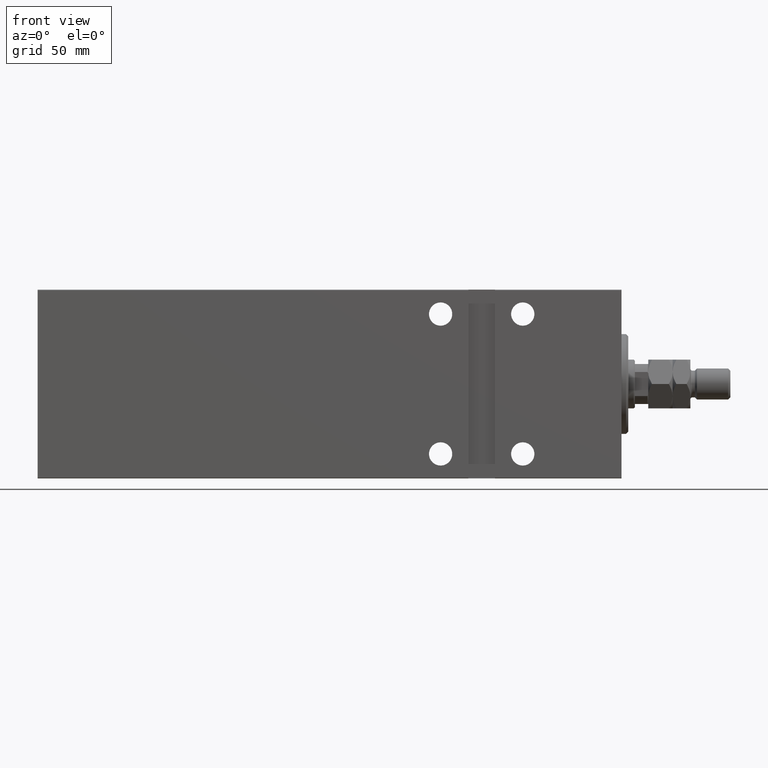
[diagram: clean part render]
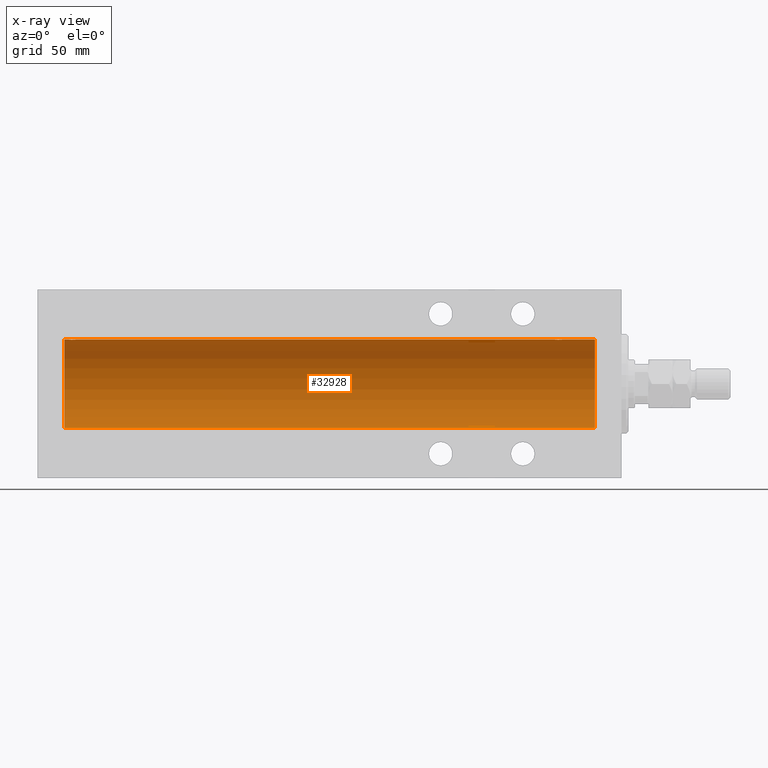
[diagram: x-ray — body ghosted, one internal face saturated and labeled with its STEP entity id]
A machine part, front view, then the same camera in x-ray: the body is ghosted and one INTERNAL B-rep face — a face not visible from any outside direction — is saturated and labeled: STEP entity #32928.
In plain terms, the highlighted cylindrical surface (partial cylindrical patch) has radius 20 mm, axis along (1, 0, -0).
Its self-contained STEP definition (entity closure, byte-faithful):
#510 = CARTESIAN_POINT ( 'NONE',  ( 28.63058871710835618, -2.000100592782549924, 19.89973863218036598 ) ) ;
#591 = CARTESIAN_POINT ( 'NONE',  ( 249.0977469155473045, -1.230936344679274264, 19.96293863536309132 ) ) ;
#1184 = DIRECTION ( 'NONE',  ( -1.000000000000000000, -0.000000000000000000, -0.000000000000000000 ) ) ;
#1197 = CARTESIAN_POINT ( 'NONE',  ( 29.14348528733042798, -1.898187925611333648, 19.90978194174746818 ) ) ;
#1383 = CYLINDRICAL_SURFACE ( 'NONE', #31012, 20.00000000000000000 ) ;
#1417 = CARTESIAN_POINT ( 'NONE',  ( 26.50000000000000711, -0.2610801504281918817, 19.99999999999999645 ) ) ;
#1711 = DIRECTION ( 'NONE',  ( 0.000000000000000000, 0.000000000000000000, 1.000000000000000000 ) ) ;
#3350 = LINE ( 'NONE', #39270, #24480 ) ;
#3582 = CARTESIAN_POINT ( 'NONE',  ( 249.5000000000000000, 6.302651633021393742E-15, 20.00000000000000000 ) ) ;
#4028 = VERTEX_POINT ( 'NONE', #29149 ) ;
#4050 = CARTESIAN_POINT ( 'NONE',  ( 249.4999999999999432, -0.2644051013330991906, 19.99999999999999645 ) ) ;
#4422 = CARTESIAN_POINT ( 'NONE',  ( 26.50000000000000355, -1.552596590610734385E-23, 20.00000000000000000 ) ) ;
#4978 = EDGE_LOOP ( 'NONE', ( #7448, #14405, #43870, #41505, #30752, #31924, #45041, #44434 ) ) ;
#5089 = CARTESIAN_POINT ( 'NONE',  ( 29.38579076670727730, -1.797933656607911601, 19.91908554465557657 ) ) ;
#6819 = CARTESIAN_POINT ( 'NONE',  ( 245.7517408653998245, -1.005710574260838763, 19.97614991974274190 ) ) ;
#7037 = CARTESIAN_POINT ( 'NONE',  ( 247.3663480385755236, -1.999898234284056109, 19.89975896996865856 ) ) ;
#7448 = ORIENTED_EDGE ( 'NONE', *, *, #17796, .F. ) ;
#8097 = CARTESIAN_POINT ( 'NONE',  ( 27.98076487864723916, -1.935816449315122423, 19.90611141657402072 ) ) ;
#9171 = CARTESIAN_POINT ( 'NONE',  ( 12.00000000000001066, 2.449293598294706513E-15, -20.00000000000000000 ) ) ;
#9680 = EDGE_CURVE ( 'NONE', #15655, #21160, #43427, .T. ) ;
#10259 = CARTESIAN_POINT ( 'NONE',  ( 245.4999999999999716, -0.2610801504281910490, 19.99999999999999289 ) ) ;
#10487 = CARTESIAN_POINT ( 'NONE',  ( 247.7607725603157576, -1.987205673487800306, 19.90104673894211373 ) ) ;
#10711 = CARTESIAN_POINT ( 'NONE',  ( 248.0164853291890665, -1.936551476642993430, 19.90603968831099024 ) ) ;
#11323 = CARTESIAN_POINT ( 'NONE',  ( 27.27971054205536561, -1.589957321664207779, 19.93683391378736758 ) ) ;
#11755 = LINE ( 'NONE', #42638, #39162 ) ;
#11772 = CARTESIAN_POINT ( 'NONE',  ( 29.82096906847290541, -1.507328959728488904, 19.94333197382386302 ) ) ;
#11867 = CARTESIAN_POINT ( 'NONE',  ( 251.0000000000000000, 0.000000000000000000, 20.00000000000000000 ) ) ;
#12027 = CARTESIAN_POINT ( 'NONE',  ( 251.0000000000000000, 2.449293598294706513E-15, -20.00000000000000000 ) ) ;
#12164 = DIRECTION ( 'NONE',  ( -1.000000000000000000, 0.000000000000000000, 0.000000000000000000 ) ) ;
#12184 = CARTESIAN_POINT ( 'NONE',  ( 251.0000000000000000, 2.449293598294706513E-15, -20.00000000000000000 ) ) ;
#13655 = VERTEX_POINT ( 'NONE', #20788 ) ;
#13943 = CARTESIAN_POINT ( 'NONE',  ( 245.9005847511597267, -1.228758402364235280, 19.96307487248084911 ) ) ;
#14171 = CARTESIAN_POINT ( 'NONE',  ( 246.6117056279290978, -1.796691196322309558, 19.91919800395357854 ) ) ;
#14405 = ORIENTED_EDGE ( 'NONE', *, *, #38043, .T. ) ;
#14540 = CARTESIAN_POINT ( 'NONE',  ( 30.24686976303071617, -1.008108445278685483, 19.97602680192586533 ) ) ;
#14602 = DIRECTION ( 'NONE',  ( -1.000000000000000000, -0.000000000000000000, -0.000000000000000000 ) ) ;
#15014 = CARTESIAN_POINT ( 'NONE',  ( 26.75174086539981744, -1.005710574260838985, 19.97614991974274545 ) ) ;
#15180 = B_SPLINE_CURVE_WITH_KNOTS ( 'NONE', 3,
 ( #4422, #1417, #18231, #15014, #29068, #42891, #11323, #25591, #15459, #39655, #8097, #22596, #22144, #510, #32288, #32759, #1197, #5089, #15233, #43329, #11772, #25820, #14540, #39885, #42655, #25140 ),
 .UNSPECIFIED., .F., .F.,
 ( 4, 2, 2, 2, 2, 2, 2, 2, 2, 2, 2, 2, 4 ),
 ( 0.006256819553329838815, 0.007038738568778801080, 0.007820657584227765080, 0.008211617091952248815, 0.008602576599676734284, 0.008993536107401218019, 0.009384495615125703488, 0.009775455122850187223, 0.01016641463057467269, 0.01055737413829915816, 0.01094833364602364190, 0.01173025266147261284, 0.01251217167692158204 ),
 .UNSPECIFIED. ) ;
#15233 = CARTESIAN_POINT ( 'NONE',  ( 29.50067219139243235, -1.736582545981371517, 19.92459705242980661 ) ) ;
#15385 = CARTESIAN_POINT ( 'NONE',  ( 245.5000000000000000, -1.553227679334911194E-23, 20.00000000000000000 ) ) ;
#15459 = CARTESIAN_POINT ( 'NONE',  ( 27.61170562792909422, -1.796691196322316664, 19.91919800395357143 ) ) ;
#15655 = VERTEX_POINT ( 'NONE', #39192 ) ;
#15681 = VECTOR ( 'NONE', #40292, 1000.000000000000000 ) ;
#17605 = B_SPLINE_CURVE_WITH_KNOTS ( 'NONE', 3,
 ( #45269, #10259, #38380, #6819, #13943, #28450, #42059, #35148, #14171, #31917, #20853, #34928, #7037, #42503, #10487, #10711, #21300, #17860, #28224, #24538, #38603, #591, #39050, #35618, #4050, #3582 ),
 .UNSPECIFIED., .F., .F.,
 ( 4, 2, 2, 2, 2, 2, 2, 2, 2, 2, 2, 2, 4 ),
 ( 0.006256819553329842284, 0.007038738568778797611, 0.007820657584227752937, 0.008211617091952231468, 0.008602576599676708263, 0.008993536107401185059, 0.009384495615125663590, 0.009775455122850140385, 0.01016641463057461892, 0.01055737413829909571, 0.01094833364602357251, 0.01173025266147258508, 0.01251217167692159592 ),
 .UNSPECIFIED. ) ;
#17796 = EDGE_CURVE ( 'NONE', #38497, #15655, #44285, .T. ) ;
#17860 = CARTESIAN_POINT ( 'NONE',  ( 248.3857907667073448, -1.797933656607908492, 19.91908554465558012 ) ) ;
#18231 = CARTESIAN_POINT ( 'NONE',  ( 26.55244937117491943, -0.5243189001515010661, 19.99457699142850231 ) ) ;
#18633 = EDGE_CURVE ( 'NONE', #13655, #4028, #15180, .T. ) ;
#19025 = EDGE_CURVE ( 'NONE', #13655, #27597, #11755, .T. ) ;
#19166 = AXIS2_PLACEMENT_3D ( 'NONE', #40173, #33265, #1711 ) ;
#20788 = CARTESIAN_POINT ( 'NONE',  ( 26.50000000000000355, -1.552596590610734385E-23, 20.00000000000000000 ) ) ;
#20853 = CARTESIAN_POINT ( 'NONE',  ( 246.9807648786472214, -1.935816449315125976, 19.90611141657401362 ) ) ;
#21160 = VERTEX_POINT ( 'NONE', #36216 ) ;
#21300 = CARTESIAN_POINT ( 'NONE',  ( 248.1434852873304351, -1.898187925611329430, 19.90978194174747173 ) ) ;
#21353 = CIRCLE ( 'NONE', #19166, 20.00000000000000000 ) ;
#22144 = CARTESIAN_POINT ( 'NONE',  ( 28.36634803857552001, -1.999898234284059217, 19.89975896996866211 ) ) ;
#22596 = CARTESIAN_POINT ( 'NONE',  ( 28.23641855908585541, -1.986835489085811091, 19.90108393514801932 ) ) ;
#24480 = VECTOR ( 'NONE', #14602, 1000.000000000000000 ) ;
#24538 = CARTESIAN_POINT ( 'NONE',  ( 248.7180541947215886, -1.591668229360192699, 19.93669678979813042 ) ) ;
#25140 = CARTESIAN_POINT ( 'NONE',  ( 30.50000000000000000, -1.046815686542558243E-15, 20.00000000000000000 ) ) ;
#25557 = CARTESIAN_POINT ( 'NONE',  ( 251.0000000000000000, 0.000000000000000000, 0.000000000000000000 ) ) ;
#25591 = CARTESIAN_POINT ( 'NONE',  ( 27.49693443660397918, -1.735203193119892795, 19.92471783160911158 ) ) ;
#25762 = CARTESIAN_POINT ( 'NONE',  ( 251.0000000000000000, 0.000000000000000000, 0.000000000000000000 ) ) ;
#25820 = CARTESIAN_POINT ( 'NONE',  ( 30.09774691554730452, -1.230936344679274486, 19.96293863536309487 ) ) ;
#26138 = DIRECTION ( 'NONE',  ( -1.000000000000000000, -0.000000000000000000, -0.000000000000000000 ) ) ;
#26741 = EDGE_CURVE ( 'NONE', #42440, #27597, #21353, .T. ) ;
#27597 = VERTEX_POINT ( 'NONE', #31955 ) ;
#28224 = CARTESIAN_POINT ( 'NONE',  ( 248.5006721913924537, -1.736582545981371073, 19.92459705242981371 ) ) ;
#28450 = CARTESIAN_POINT ( 'NONE',  ( 246.1769333108052535, -1.505486175075771094, 19.94347168299867334 ) ) ;
#28565 = DIRECTION ( 'NONE',  ( -1.000000000000000000, -0.000000000000000000, -0.000000000000000000 ) ) ;
#28800 = DIRECTION ( 'NONE',  ( 0.000000000000000000, 0.000000000000000000, 1.000000000000000000 ) ) ;
#29068 = CARTESIAN_POINT ( 'NONE',  ( 26.90058475115969472, -1.228758402364235502, 19.96307487248084200 ) ) ;
#29149 = CARTESIAN_POINT ( 'NONE',  ( 30.50000000000000000, -1.046815686542558243E-15, 20.00000000000000000 ) ) ;
#30752 = ORIENTED_EDGE ( 'NONE', *, *, #18633, .T. ) ;
#31012 = AXIS2_PLACEMENT_3D ( 'NONE', #25557, #28565, #28800 ) ;
#31319 = EDGE_CURVE ( 'NONE', #34733, #21160, #17605, .T. ) ;
#31917 = CARTESIAN_POINT ( 'NONE',  ( 246.8536932607535448, -1.897222639860587146, 19.90987429971496780 ) ) ;
#31924 = ORIENTED_EDGE ( 'NONE', *, *, #36847, .F. ) ;
#31955 = CARTESIAN_POINT ( 'NONE',  ( 12.00000000000001066, 0.000000000000000000, 20.00000000000000000 ) ) ;
#32288 = CARTESIAN_POINT ( 'NONE',  ( 28.76077256031568297, -1.987205673487805191, 19.90104673894211018 ) ) ;
#32759 = CARTESIAN_POINT ( 'NONE',  ( 29.01648532918906653, -1.936551476643002090, 19.90603968831098669 ) ) ;
#32928 = ADVANCED_FACE ( 'NONE', ( #43080 ), #1383, .F. ) ;
#33265 = DIRECTION ( 'NONE',  ( -1.000000000000000000, 0.000000000000000000, 0.000000000000000000 ) ) ;
#34733 = VERTEX_POINT ( 'NONE', #15385 ) ;
#34928 = CARTESIAN_POINT ( 'NONE',  ( 247.2364185590858767, -1.986835489085811979, 19.90108393514801222 ) ) ;
#35148 = CARTESIAN_POINT ( 'NONE',  ( 246.4969344366039934, -1.735203193119892129, 19.92471783160910803 ) ) ;
#35618 = CARTESIAN_POINT ( 'NONE',  ( 249.4467948419179493, -0.5270924491156533387, 19.99450181871975474 ) ) ;
#36216 = CARTESIAN_POINT ( 'NONE',  ( 249.5000000000000000, 6.302651633021393742E-15, 20.00000000000000000 ) ) ;
#36847 = EDGE_CURVE ( 'NONE', #34733, #4028, #3350, .T. ) ;
#38043 = EDGE_CURVE ( 'NONE', #38497, #42440, #40523, .T. ) ;
#38380 = CARTESIAN_POINT ( 'NONE',  ( 245.5524493711749017, -0.5243189001514995118, 19.99457699142850231 ) ) ;
#38497 = VERTEX_POINT ( 'NONE', #12027 ) ;
#38603 = CARTESIAN_POINT ( 'NONE',  ( 248.8209690684729480, -1.507328959728486906, 19.94333197382386302 ) ) ;
#39050 = CARTESIAN_POINT ( 'NONE',  ( 249.2468697630307304, -1.008108445278668386, 19.97602680192586178 ) ) ;
#39162 = VECTOR ( 'NONE', #1184, 1000.000000000000000 ) ;
#39192 = CARTESIAN_POINT ( 'NONE',  ( 251.0000000000000000, 0.000000000000000000, 20.00000000000000000 ) ) ;
#39270 = CARTESIAN_POINT ( 'NONE',  ( 251.0000000000000000, 0.000000000000000000, 20.00000000000000000 ) ) ;
#39655 = CARTESIAN_POINT ( 'NONE',  ( 27.85369326075356611, -1.897222639860592919, 19.90987429971497136 ) ) ;
#39824 = DIRECTION ( 'NONE',  ( 0.000000000000000000, 0.000000000000000000, 1.000000000000000000 ) ) ;
#39885 = CARTESIAN_POINT ( 'NONE',  ( 30.44679484191797769, -0.5270924491156688818, 19.99450181871975829 ) ) ;
#40173 = CARTESIAN_POINT ( 'NONE',  ( 12.00000000000001066, 0.000000000000000000, 0.000000000000000000 ) ) ;
#40292 = DIRECTION ( 'NONE',  ( -1.000000000000000000, -0.000000000000000000, -0.000000000000000000 ) ) ;
#40523 = LINE ( 'NONE', #12184, #15681 ) ;
#40614 = AXIS2_PLACEMENT_3D ( 'NONE', #25762, #12164, #39824 ) ;
#41505 = ORIENTED_EDGE ( 'NONE', *, *, #19025, .F. ) ;
#41962 = VECTOR ( 'NONE', #26138, 1000.000000000000000 ) ;
#42059 = CARTESIAN_POINT ( 'NONE',  ( 246.2797105420553976, -1.589957321664207557, 19.93683391378736047 ) ) ;
#42440 = VERTEX_POINT ( 'NONE', #9171 ) ;
#42503 = CARTESIAN_POINT ( 'NONE',  ( 247.6305887171084521, -2.000100592782547704, 19.89973863218036598 ) ) ;
#42638 = CARTESIAN_POINT ( 'NONE',  ( 251.0000000000000000, 0.000000000000000000, 20.00000000000000000 ) ) ;
#42655 = CARTESIAN_POINT ( 'NONE',  ( 30.49999999999999645, -0.2644051013330979139, 20.00000000000000000 ) ) ;
#42891 = CARTESIAN_POINT ( 'NONE',  ( 27.17693331080530328, -1.505486175075773092, 19.94347168299867690 ) ) ;
#43080 = FACE_OUTER_BOUND ( 'NONE', #4978, .T. ) ;
#43329 = CARTESIAN_POINT ( 'NONE',  ( 29.71805419472151755, -1.591668229360193809, 19.93669678979813042 ) ) ;
#43427 = LINE ( 'NONE', #11867, #41962 ) ;
#43870 = ORIENTED_EDGE ( 'NONE', *, *, #26741, .T. ) ;
#44285 = CIRCLE ( 'NONE', #40614, 20.00000000000000000 ) ;
#44434 = ORIENTED_EDGE ( 'NONE', *, *, #9680, .F. ) ;
#45041 = ORIENTED_EDGE ( 'NONE', *, *, #31319, .T. ) ;
#45269 = CARTESIAN_POINT ( 'NONE',  ( 245.5000000000000000, -1.553227679334911194E-23, 20.00000000000000000 ) ) ;